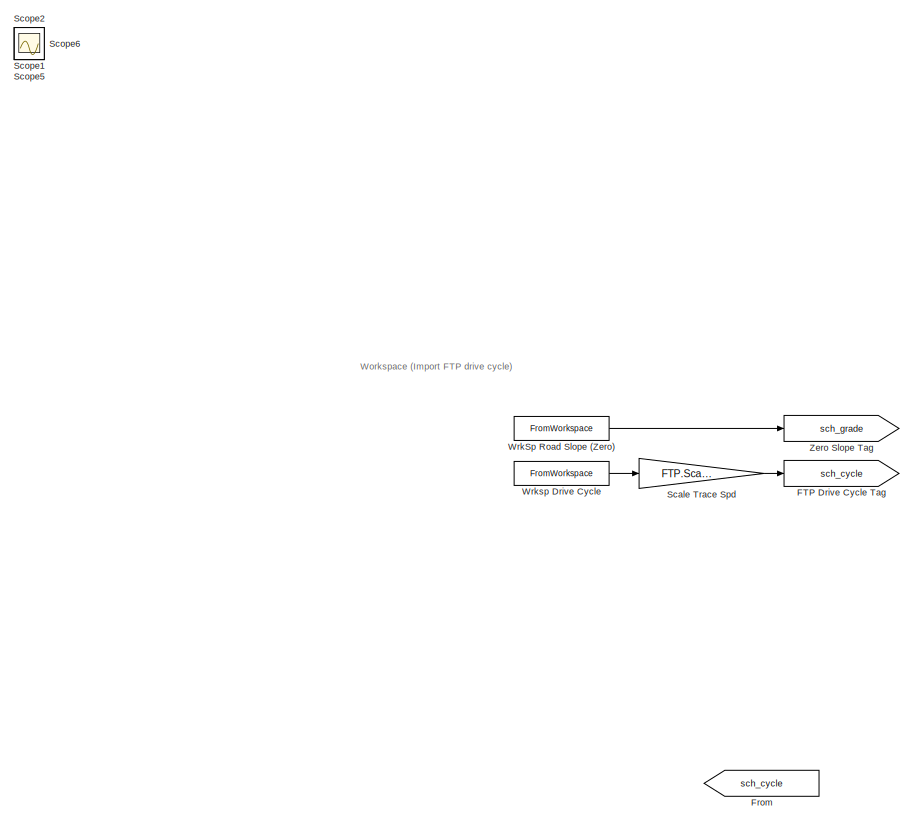
[diagram: root canvas - part 1/2, left side, full height]
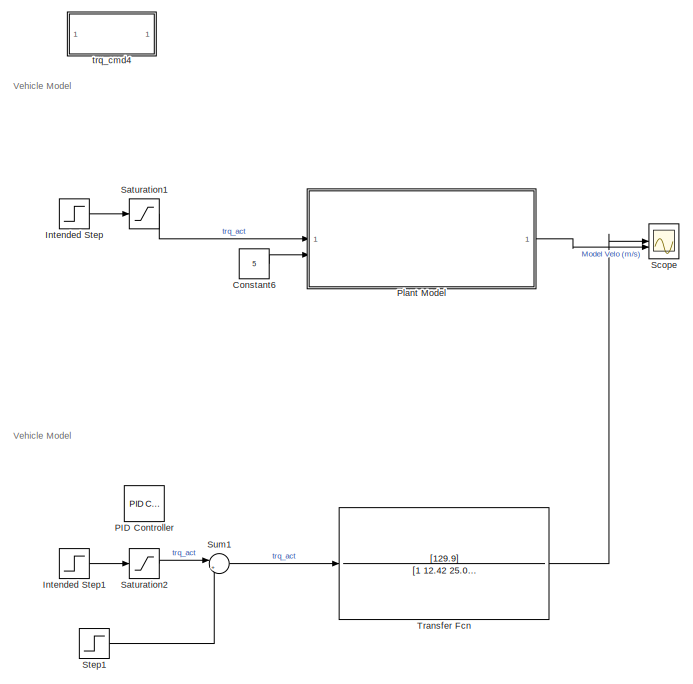
[diagram: root canvas - part 2/2, middle right region]
MODEL slx_8175510a2f96
KIND model
CONFIG AbsTol = auto
CONFIG EnableMultiTasking = off
CONFIG FixedStep = auto
CONFIG MaxStep = auto
CONFIG MinStep = auto
CONFIG RelTol = 1e-3
CONFIG SampleTimeConstraint = Unconstrained
CONFIG SolverName = VariableStepAuto
CONFIG StartTime = 0.0
CONFIG StopTime = 1000
BLOCK [Constant] Constant6
  Value = 5
BLOCK [Goto] FTP Drive Cycle Tag
  GotoTag = sch_cycle
BLOCK [From] From
  GotoTag = sch_cycle
BLOCK [Step] Intended Step
  After = 0.65
  SampleTime = 0
BLOCK [Step] Intended Step1
  After = 0.65
  SampleTime = 0
BLOCK [Reference] PID Controller  REF=slpidlib/PID Controller
  LibrarySourceBlock = simulink/Continuous/PID Controller
  SourceBlock = slpidlib/PID Controller
  SourceType = PID 1dof
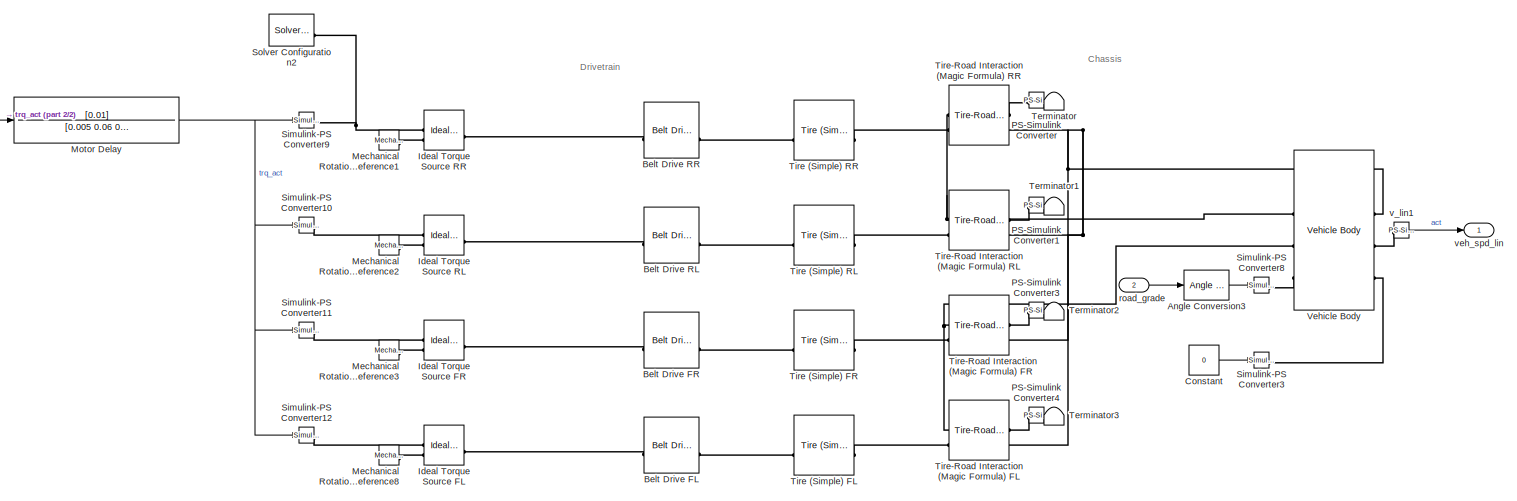
[diagram: Plant Model - part 1/2, most of the canvas]
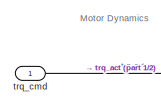
[diagram: Plant Model - part 2/2, top left region]
BLOCK [SubSystem] Plant Model
BLOCK [Reference] Plant Model/Angle Conversion3  REF=aerolibconvert2/Angle Conversion
  SourceBlock = aerolibconvert2/Angle Conversion
  SourceType = Angle Conversion
BLOCK [Reference] Plant Model/Belt Drive FL  REF=sdl_lib/Couplings & Drives/Belt Drive
  SourceBlock = sdl_lib/Couplings & Drives/Belt Drive
  SourceType = Belt Drive
BLOCK [Reference] Plant Model/Belt Drive FR  REF=sdl_lib/Couplings & Drives/Belt Drive
  SourceBlock = sdl_lib/Couplings & Drives/Belt Drive
  SourceType = Belt Drive
BLOCK [Reference] Plant Model/Belt Drive RL  REF=sdl_lib/Couplings & Drives/Belt Drive
  SourceBlock = sdl_lib/Couplings & Drives/Belt Drive
  SourceType = Belt Drive
BLOCK [Reference] Plant Model/Belt Drive RR  REF=sdl_lib/Couplings & Drives/Belt Drive
  SourceBlock = sdl_lib/Couplings & Drives/Belt Drive
  SourceType = Belt Drive
BLOCK [Constant] Plant Model/Constant
  Value = 0
BLOCK [Reference] Plant Model/Ideal Torque Source FL  REF=fl_lib/Mechanical/Mechanical Sources/Ideal Torque Source
  SourceBlock = fl_lib/Mechanical/Mechanical Sources/Ideal Torque Source
  SourceType = Ideal Torque Source
BLOCK [Reference] Plant Model/Ideal Torque Source FR  REF=fl_lib/Mechanical/Mechanical Sources/Ideal Torque Source
  SourceBlock = fl_lib/Mechanical/Mechanical Sources/Ideal Torque Source
  SourceType = Ideal Torque Source
BLOCK [Reference] Plant Model/Ideal Torque Source RL  REF=fl_lib/Mechanical/Mechanical Sources/Ideal Torque Source
  SourceBlock = fl_lib/Mechanical/Mechanical Sources/Ideal Torque Source
  SourceType = Ideal Torque Source
BLOCK [Reference] Plant Model/Ideal Torque Source RR  REF=fl_lib/Mechanical/Mechanical Sources/Ideal Torque Source
  SourceBlock = fl_lib/Mechanical/Mechanical Sources/Ideal Torque Source
  SourceType = Ideal Torque Source
BLOCK [Reference] Plant Model/Mechanical Rotational Reference1  REF=fl_lib/Mechanical/Rotational Elements/Mechanical
Rotational Reference
  SourceBlock = fl_lib/Mechanical/Rotational Elements/Mechanical\nRotational Reference
  SourceType = Mechanical\nRotational Reference
BLOCK [Reference] Plant Model/Mechanical Rotational Reference2  REF=fl_lib/Mechanical/Rotational Elements/Mechanical
Rotational Reference
  SourceBlock = fl_lib/Mechanical/Rotational Elements/Mechanical\nRotational Reference
  SourceType = Mechanical\nRotational Reference
BLOCK [Reference] Plant Model/Mechanical Rotational Reference3  REF=fl_lib/Mechanical/Rotational Elements/Mechanical
Rotational Reference
  SourceBlock = fl_lib/Mechanical/Rotational Elements/Mechanical\nRotational Reference
  SourceType = Mechanical\nRotational Reference
BLOCK [Reference] Plant Model/Mechanical Rotational Reference8  REF=fl_lib/Mechanical/Rotational Elements/Mechanical
Rotational Reference
  SourceBlock = fl_lib/Mechanical/Rotational Elements/Mechanical\nRotational Reference
  SourceType = Mechanical\nRotational Reference
BLOCK [TransferFcn] Plant Model/Motor Delay
  Denominator = [0.005 0.06 0.1001]
  Numerator = [0.01]
BLOCK [Reference] Plant Model/PS-Simulink Converter  REF=nesl_utility/PS-Simulink
Converter
  SourceBlock = nesl_utility/PS-Simulink\nConverter
  SourceType = PS-Simulink\nConverter
BLOCK [Reference] Plant Model/PS-Simulink Converter1  REF=nesl_utility/PS-Simulink
Converter
  SourceBlock = nesl_utility/PS-Simulink\nConverter
  SourceType = PS-Simulink\nConverter
BLOCK [Reference] Plant Model/PS-Simulink Converter3  REF=nesl_utility/PS-Simulink
Converter
  SourceBlock = nesl_utility/PS-Simulink\nConverter
  SourceType = PS-Simulink\nConverter
BLOCK [Reference] Plant Model/PS-Simulink Converter4  REF=nesl_utility/PS-Simulink
Converter
  SourceBlock = nesl_utility/PS-Simulink\nConverter
  SourceType = PS-Simulink\nConverter
BLOCK [Reference] Plant Model/Simulink-PS Converter10  REF=nesl_utility/Simulink-PS
Converter
  SourceBlock = nesl_utility/Simulink-PS\nConverter
  SourceType = Simulink-PS\nConverter
BLOCK [Reference] Plant Model/Simulink-PS Converter11  REF=nesl_utility/Simulink-PS
Converter
  SourceBlock = nesl_utility/Simulink-PS\nConverter
  SourceType = Simulink-PS\nConverter
BLOCK [Reference] Plant Model/Simulink-PS Converter12  REF=nesl_utility/Simulink-PS
Converter
  SourceBlock = nesl_utility/Simulink-PS\nConverter
  SourceType = Simulink-PS\nConverter
BLOCK [Reference] Plant Model/Simulink-PS Converter3  REF=nesl_utility/Simulink-PS
Converter
  SourceBlock = nesl_utility/Simulink-PS\nConverter
  SourceType = Simulink-PS\nConverter
BLOCK [Reference] Plant Model/Simulink-PS Converter8  REF=nesl_utility/Simulink-PS
Converter
  SourceBlock = nesl_utility/Simulink-PS\nConverter
  SourceType = Simulink-PS\nConverter
BLOCK [Reference] Plant Model/Simulink-PS Converter9  REF=nesl_utility/Simulink-PS
Converter
  SourceBlock = nesl_utility/Simulink-PS\nConverter
  SourceType = Simulink-PS\nConverter
BLOCK [Reference] Plant Model/Solver Configuration2  REF=nesl_utility/Solver
Configuration
  SourceBlock = nesl_utility/Solver\nConfiguration
  SourceType = Solver\nConfiguration
BLOCK [Terminator] Plant Model/Terminator
BLOCK [Terminator] Plant Model/Terminator1
BLOCK [Terminator] Plant Model/Terminator2
BLOCK [Terminator] Plant Model/Terminator3
BLOCK [Reference] Plant Model/Tire (Simple) FL  REF=sdl_lib/Tires & Vehicles/Tire (Simple)
  SourceBlock = sdl_lib/Tires & Vehicles/Tire (Simple)
  SourceType = Tire (Simple)
BLOCK [Reference] Plant Model/Tire (Simple) FR  REF=sdl_lib/Tires & Vehicles/Tire (Simple)
  SourceBlock = sdl_lib/Tires & Vehicles/Tire (Simple)
  SourceType = Tire (Simple)
BLOCK [Reference] Plant Model/Tire (Simple) RL  REF=sdl_lib/Tires & Vehicles/Tire (Simple)
  SourceBlock = sdl_lib/Tires & Vehicles/Tire (Simple)
  SourceType = Tire (Simple)
BLOCK [Reference] Plant Model/Tire (Simple) RR  REF=sdl_lib/Tires & Vehicles/Tire (Simple)
  SourceBlock = sdl_lib/Tires & Vehicles/Tire (Simple)
  SourceType = Tire (Simple)
BLOCK [Reference] Plant Model/Tire-Road Interaction (Magic Formula) FL  REF=sdl_lib/Tires & Vehicles/Tire Subcomponents/Tire-Road
Interaction (Magic
Formula)
  SourceBlock = sdl_lib/Tires & Vehicles/Tire Subcomponents/Tire-Road\nInteraction (Magic\nFormula)
  SourceType = Tire-Road\nInteraction (Magic\nFormula)
BLOCK [Reference] Plant Model/Tire-Road Interaction (Magic Formula) FR  REF=sdl_lib/Tires & Vehicles/Tire Subcomponents/Tire-Road
Interaction (Magic
Formula)
  SourceBlock = sdl_lib/Tires & Vehicles/Tire Subcomponents/Tire-Road\nInteraction (Magic\nFormula)
  SourceType = Tire-Road\nInteraction (Magic\nFormula)
BLOCK [Reference] Plant Model/Tire-Road Interaction (Magic Formula) RL  REF=sdl_lib/Tires & Vehicles/Tire Subcomponents/Tire-Road
Interaction (Magic
Formula)
  SourceBlock = sdl_lib/Tires & Vehicles/Tire Subcomponents/Tire-Road\nInteraction (Magic\nFormula)
  SourceType = Tire-Road\nInteraction (Magic\nFormula)
BLOCK [Reference] Plant Model/Tire-Road Interaction (Magic Formula) RR  REF=sdl_lib/Tires & Vehicles/Tire Subcomponents/Tire-Road
Interaction (Magic
Formula)
  SourceBlock = sdl_lib/Tires & Vehicles/Tire Subcomponents/Tire-Road\nInteraction (Magic\nFormula)
  SourceType = Tire-Road\nInteraction (Magic\nFormula)
BLOCK [Reference] Plant Model/Vehicle Body  REF=sdl_lib/Tires & Vehicles/Vehicle Body
  SourceBlock = sdl_lib/Tires & Vehicles/Vehicle Body
  SourceType = Vehicle Body
BLOCK [Inport] Plant Model/road_grade
  Port = 2
BLOCK [Inport] Plant Model/trq_cmd
BLOCK [Reference] Plant Model/v_lin1  REF=nesl_utility/PS-Simulink
Converter
  SourceBlock = nesl_utility/PS-Simulink\nConverter
  SourceType = PS-Simulink\nConverter
BLOCK [Outport] Plant Model/veh_spd_lin
BLOCK [Saturate] Saturation1
  LowerLimit = powertrain.LowerTorqueLim
  UpperLimit = powertrain.UpperTorqueLim
BLOCK [Saturate] Saturation2
  LowerLimit = powertrain.LowerTorqueLim
  UpperLimit = powertrain.UpperTorqueLim
BLOCK [Gain] Scale Trace Spd
  Gain = FTP.ScaledSpd
BLOCK [Scope] Scope
  Floating = off
  NumInputPorts = 2
  ScopeSpecificationString = Simulink.scopes.TimeScopeBlockCfg('CurrentConfiguration', extmgr.ConfigurationSet(extmgr.Configuration('Core','General UI',true),extmgr.Configuration('Core','Source UI',true),extmgr.Configuration('Sources','WiredSimulink',true,'DataLoggingVariableName','ScopeData3'),extmgr.Configuration('Visuals','Time Domain',true,'SerializedDisplays',{struct('MinYLimReal','-1.85454','MaxYLimReal','16.69087','YLa...<+1480ch>
BLOCK [Scope] Scope1
  Floating = off
  IOType = viewer
  NumInputPorts = 1
  ScopeSpecificationString = Simulink.scopes.TimeScopeBlockCfg('CurrentConfiguration', extmgr.ConfigurationSet(extmgr.Configuration('Core','General UI',true),extmgr.Configuration('Core','Source UI',true),extmgr.Configuration('Sources','WiredSimulink',true,'DataLoggingVariableName','ScopeData2'),extmgr.Configuration('Visuals','Time Domain',true,'SerializedDisplays',{struct('MinYLimReal','-0.00656','MaxYLimReal','0.05908','YLab...<+1388ch>
BLOCK [Scope] Scope2
  Floating = off
  IOType = viewer
  NumInputPorts = 1
  ScopeSpecificationString = Simulink.scopes.TimeScopeBlockCfg('CurrentConfiguration', extmgr.ConfigurationSet(extmgr.Configuration('Core','General UI',true),extmgr.Configuration('Core','Source UI',true),extmgr.Configuration('Sources','WiredSimulink',true,'DataLoggingVariableName','ScopeData2'),extmgr.Configuration('Visuals','Time Domain',true,'SerializedDisplays',{struct('MinYLimReal','-0.12162','MaxYLimReal','1.09462','YLab...<+1388ch>
BLOCK [Scope] Scope5
  Floating = off
  IOType = viewer
  NumInputPorts = 1
  ScopeSpecificationString = Simulink.scopes.TimeScopeBlockCfg('CurrentConfiguration', extmgr.ConfigurationSet(extmgr.Configuration('Core','General UI',true),extmgr.Configuration('Core','Source UI',true),extmgr.Configuration('Sources','WiredSimulink',true,'DataLoggingVariableName','ScopeData4'),extmgr.Configuration('Visuals','Time Domain',true,'SerializedDisplays',{struct('MinYLimReal','-1.25','MaxYLimReal','11.25','YLabelRea...<+1345ch>
BLOCK [Scope] Scope6
  Floating = off
  IOType = viewer
  NumInputPorts = 1
  ScopeSpecificationString = Simulink.scopes.TimeScopeBlockCfg('CurrentConfiguration', extmgr.ConfigurationSet(extmgr.Configuration('Core','General UI',true),extmgr.Configuration('Core','Source UI',true),extmgr.Configuration('Sources','WiredSimulink',true,'DataLoggingVariableName','ScopeData4'),extmgr.Configuration('Visuals','Time Domain',true,'SerializedDisplays',{struct('MinYLimReal','-0.03312','MaxYLimReal','0.29813','YLab...<+1419ch>
BLOCK [Step] Step1
  After = 0.11542707
  SampleTime = 0
BLOCK [Sum] Sum1
  Inputs = |+-
BLOCK [TransferFcn] Transfer Fcn
  Denominator = [1 12.42 25.07 8.427]
  Numerator = [129.9]
BLOCK [FromWorkspace] WrkSp Road Slope (Zero)
  VariableName = FTP.sch_grade.data
BLOCK [FromWorkspace] Wrksp Drive Cycle
  VariableName = FTP.sch_cycle.data
BLOCK [Goto] Zero Slope Tag
  GotoTag = sch_grade
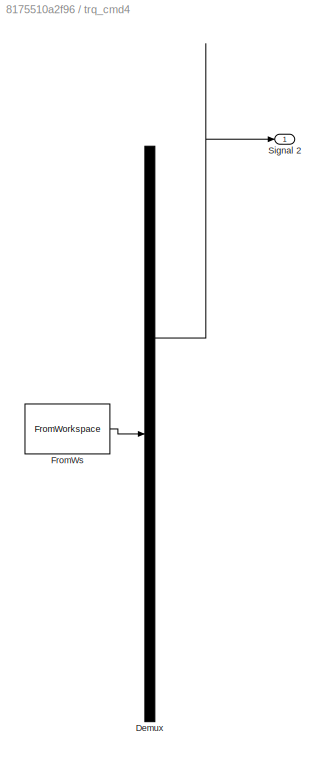
BLOCK [SubSystem] trq_cmd4
  ClipboardFcn = sigbuilder_block('clipboard');
  CloseFcn = sigbuilder_block('close');
  ContinueFcn = sigbuilder_block('continue');
  CopyFcn = sigbuilder_block('copy');
  DeleteFcn = sigbuilder_block('delete');
  LoadFcn = sigbuilder_block('load');
  MaskHideContents = on
  ModelCloseFcn = sigbuilder_block('modelClose');
  NameChangeFcn = sigbuilder_block('namechange');
  OpenFcn = sigbuilder_block('open',[634 354 1003 351 ]);
  PauseFcn = sigbuilder_block('pause');
  PreSaveFcn = sigbuilder_block('preSave');
  StartFcn = sigbuilder_block('start');
  StopFcn = sigbuilder_block('stop');
  Tag = STV Subsys
BLOCK [Demux] trq_cmd4/Demux
  DisplayOption = none
  Outputs = 1
  Tag = STV Demux
BLOCK [FromWorkspace] trq_cmd4/FromWs
  Tag = STV FromWs
  VariableName = tuvar
BLOCK [Outport] trq_cmd4/Signal 2
  Tag = STV Outport
ANNOTATION (root): Vehicle Model
ANNOTATION (root): Workspace (Import FTP drive cycle)
ANNOTATION Plant Model: Chassis
ANNOTATION Plant Model: Drivetrain
ANNOTATION Plant Model: Motor Dynamics
LINE Constant6:1 -> Plant Model:2
LINE Intended Step1:1 -> Saturation2:1
LINE Intended Step:1 -> Saturation1:1
LINE Plant Model/Angle Conversion3:1 -> Plant Model/Simulink-PS Converter8:1
LINE Plant Model/Constant:1 -> Plant Model/Simulink-PS Converter3:1
NET Plant Model/Motor Delay:1 -> Plant Model/Simulink-PS Converter10:1, Plant Model/Simulink-PS Converter11:1, Plant Model/Simulink-PS Converter12:1, Plant Model/Simulink-PS Converter9:1
LINE Plant Model/PS-Simulink Converter1:1 -> Plant Model/Terminator1:1
LINE Plant Model/PS-Simulink Converter3:1 -> Plant Model/Terminator2:1
LINE Plant Model/PS-Simulink Converter4:1 -> Plant Model/Terminator3:1
LINE Plant Model/PS-Simulink Converter:1 -> Plant Model/Terminator:1
LINE Plant Model/road_grade:1 -> Plant Model/Angle Conversion3:1
LINE Plant Model/trq_cmd:1 -> Plant Model/Motor Delay:1
LINE Plant Model/v_lin1:1 -> Plant Model/veh_spd_lin:1
LINE Plant Model:1 -> Scope:2
LINE Saturation1:1 -> Plant Model:1
LINE Saturation2:1 -> Sum1:1
LINE Scale Trace Spd:1 -> FTP Drive Cycle Tag:1
LINE Step1:1 -> Sum1:2
LINE Sum1:1 -> Transfer Fcn:1
LINE Transfer Fcn:1 -> Scope:1
LINE WrkSp Road Slope (Zero):1 -> Zero Slope Tag:1
LINE Wrksp Drive Cycle:1 -> Scale Trace Spd:1
PLINE Plant Model/Belt Drive FL:LConn1 -- Plant Model/Ideal Torque Source FL:LConn1
PLINE Plant Model/Belt Drive FL:RConn1 -- Plant Model/Tire (Simple) FL:LConn1
PLINE Plant Model/Belt Drive FR:LConn1 -- Plant Model/Ideal Torque Source FR:LConn1
PLINE Plant Model/Belt Drive FR:RConn1 -- Plant Model/Tire (Simple) FR:LConn1
PLINE Plant Model/Belt Drive RL:LConn1 -- Plant Model/Ideal Torque Source RL:LConn1
PLINE Plant Model/Belt Drive RL:RConn1 -- Plant Model/Tire (Simple) RL:LConn1
PLINE Plant Model/Belt Drive RR:LConn1 -- Plant Model/Ideal Torque Source RR:LConn1
PLINE Plant Model/Belt Drive RR:RConn1 -- Plant Model/Tire (Simple) RR:LConn1
PLINE Plant Model/Ideal Torque Source FL:RConn1 -- Plant Model/Simulink-PS Converter12:RConn1
PLINE Plant Model/Ideal Torque Source FL:RConn2 -- Plant Model/Mechanical Rotational Reference8:LConn1
PLINE Plant Model/Ideal Torque Source FR:RConn1 -- Plant Model/Simulink-PS Converter11:RConn1
PLINE Plant Model/Ideal Torque Source FR:RConn2 -- Plant Model/Mechanical Rotational Reference3:LConn1
PLINE Plant Model/Ideal Torque Source RL:RConn1 -- Plant Model/Simulink-PS Converter10:RConn1
PLINE Plant Model/Ideal Torque Source RL:RConn2 -- Plant Model/Mechanical Rotational Reference2:LConn1
PNET net1: Plant Model/Ideal Torque Source RR:RConn1 -- Plant Model/Simulink-PS Converter9:RConn1 -- Plant Model/Solver Configuration2:RConn1
PLINE Plant Model/Ideal Torque Source RR:RConn2 -- Plant Model/Mechanical Rotational Reference1:LConn1
PLINE Plant Model/PS-Simulink Converter1:LConn1 -- Plant Model/Tire-Road Interaction (Magic Formula) RL:RConn1
PLINE Plant Model/PS-Simulink Converter3:LConn1 -- Plant Model/Tire-Road Interaction (Magic Formula) FR:RConn1
PLINE Plant Model/PS-Simulink Converter4:LConn1 -- Plant Model/Tire-Road Interaction (Magic Formula) FL:RConn1
PLINE Plant Model/PS-Simulink Converter:LConn1 -- Plant Model/Tire-Road Interaction (Magic Formula) RR:RConn1
PLINE Plant Model/Simulink-PS Converter3:RConn1 -- Plant Model/Vehicle Body:LConn3
PLINE Plant Model/Simulink-PS Converter8:RConn1 -- Plant Model/Vehicle Body:RConn3
PLINE Plant Model/Tire (Simple) FL:RConn1 -- Plant Model/Tire-Road Interaction (Magic Formula) FL:LConn2
PLINE Plant Model/Tire (Simple) FR:RConn1 -- Plant Model/Tire-Road Interaction (Magic Formula) FR:LConn2
PLINE Plant Model/Tire (Simple) RL:RConn1 -- Plant Model/Tire-Road Interaction (Magic Formula) RL:LConn2
PLINE Plant Model/Tire (Simple) RR:RConn1 -- Plant Model/Tire-Road Interaction (Magic Formula) RR:LConn2
PNET net2: Plant Model/Tire-Road Interaction (Magic Formula) FL:LConn1 -- Plant Model/Tire-Road Interaction (Magic Formula) FR:LConn1 -- Plant Model/Vehicle Body:RConn2
PNET net3: Plant Model/Tire-Road Interaction (Magic Formula) FL:RConn2 -- Plant Model/Tire-Road Interaction (Magic Formula) FR:RConn2 -- Plant Model/Tire-Road Interaction (Magic Formula) RL:RConn2 -- Plant Model/Tire-Road Interaction (Magic Formula) RR:RConn2 -- Plant Model/Vehicle Body:LConn1
PNET net4: Plant Model/Tire-Road Interaction (Magic Formula) RL:LConn1 -- Plant Model/Tire-Road Interaction (Magic Formula) RR:LConn1 -- Plant Model/Vehicle Body:RConn1
PLINE Plant Model/Vehicle Body:LConn2 -- Plant Model/v_lin1:LConn1
note: NET lines group one-source signal fan-out (src -> all destinations, sorted); 1:1 wires keep LINE; PNET lines group multi-terminal physical nets as a canonical sorted terminal list (undirected conserving connections); 2-terminal nets keep the pairwise PLINE form
